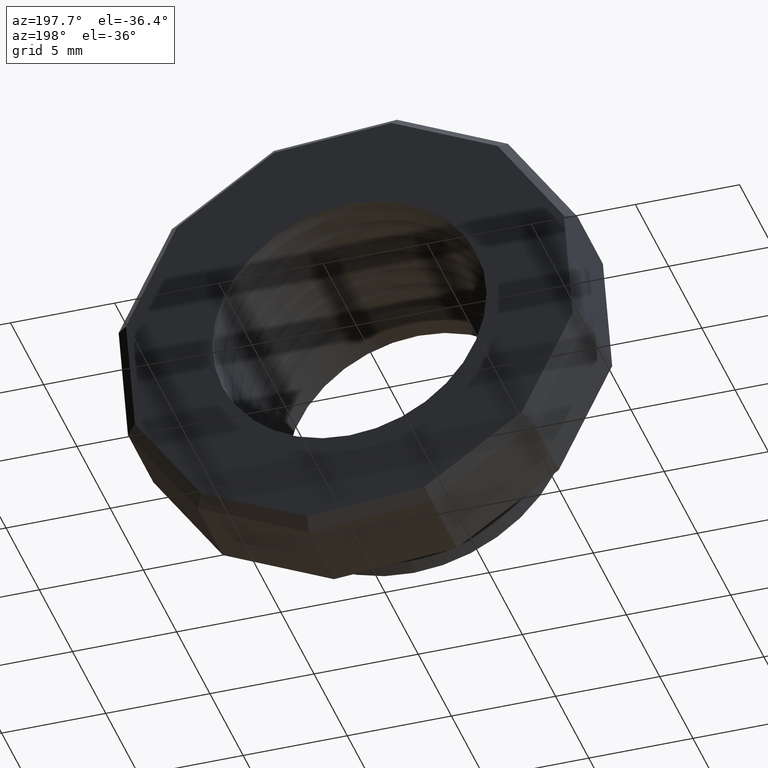
[diagram: clean part render]
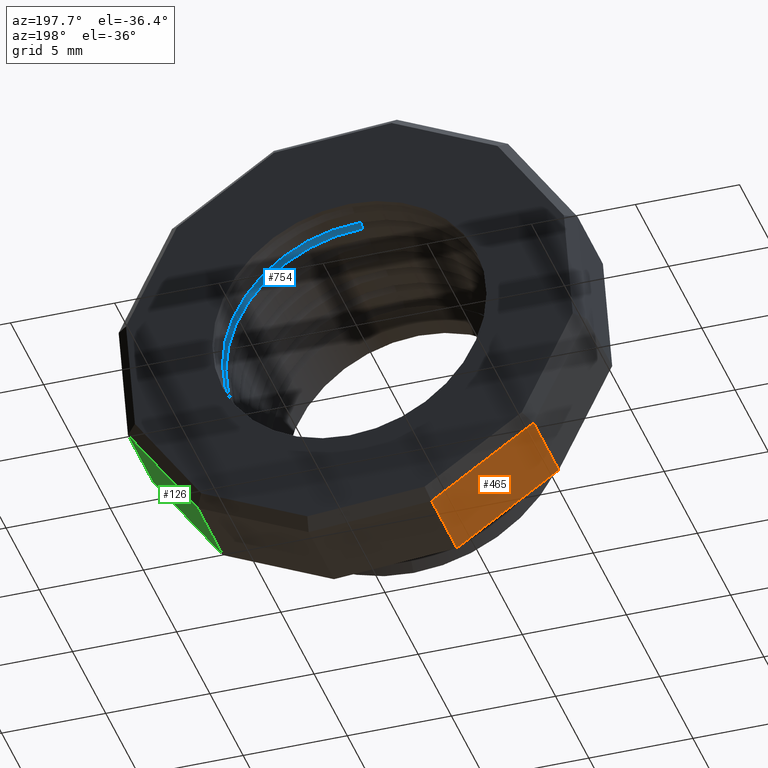
[diagram: same view with three faces highlighted in distinct colors, each labeled with its STEP entity id]
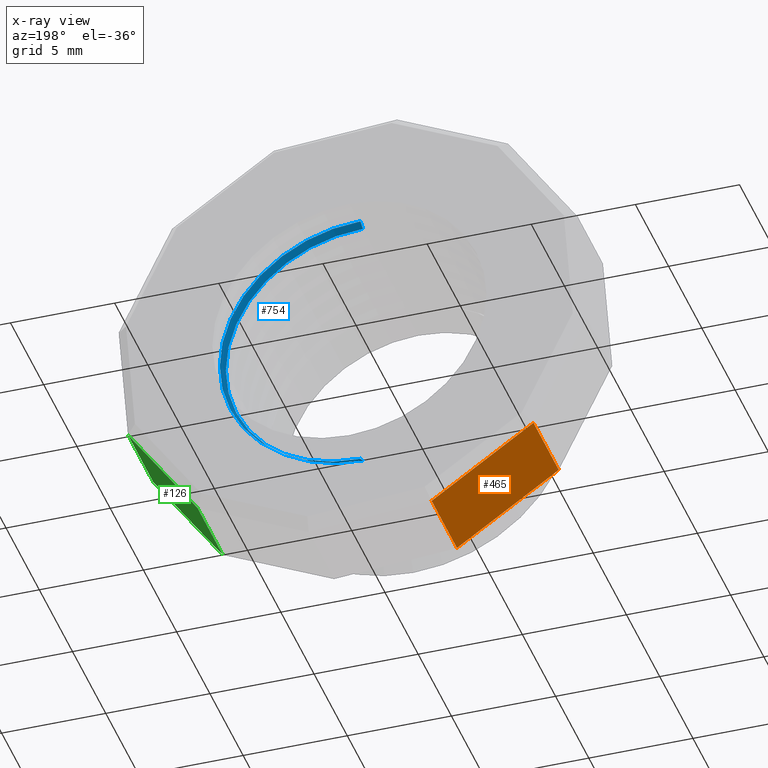
[diagram: x-ray of the same camera — body ghosted, the three highlighted faces saturated]
A machine part, auxiliary view with three faces highlighted in distinct colors.
The next image is the same camera in x-ray (body ghosted, the three faces saturated) — at least one of them is partly hidden behind the body in this view.
Their STEP definitions:

[orange] entity #465 — the highlighted planar face has unit normal (-0.5639, 0, -0.8258).
#22 = EDGE_CURVE ( 'NONE', #23, #347, #912, .T. ) ;
#23 = VERTEX_POINT ( 'NONE', #908 ) ;
#347 = VERTEX_POINT ( 'NONE', #1463 ) ;
#465 = ADVANCED_FACE ( 'NONE', ( #1689 ), #1688, .T. ) ;
#908 = CARTESIAN_POINT ( 'NONE',  ( -0.3415295484153665900, 0.2375548905829479600, -0.2934751395931106100 ) ) ;
#909 = DIRECTION ( 'NONE',  ( 0.8258262676036763900, 0.0000000000000000000, -0.5639246188417216300 ) ) ;
#910 = VECTOR ( 'NONE', #909, 39.37007874015748100 ) ;
#911 = CARTESIAN_POINT ( 'NONE',  ( -0.3415295484153665900, 0.2375548905829479600, -0.2934751395931106100 ) ) ;
#912 = LINE ( 'NONE', #911, #910 ) ;
#1463 = CARTESIAN_POINT ( 'NONE',  ( -0.1490356952741792000, 0.2375548905829479600, -0.4249217004745015100 ) ) ;
#1684 = DIRECTION ( 'NONE',  ( -0.8258262676036763900, 0.0000000000000000000, 0.5639246188417215100 ) ) ;
#1685 = DIRECTION ( 'NONE',  ( -0.5639246188417216300, 0.0000000000000000000, -0.8258262676036765000 ) ) ;
#1686 = AXIS2_PLACEMENT_3D ( 'NONE', #1687, #1685, #1684 ) ;
#1687 = CARTESIAN_POINT ( 'NONE',  ( -0.3415295484153665900, 0.4075548905829479700, -0.2934751395931106100 ) ) ;
#1688 = PLANE ( 'NONE',  #1686 ) ;
#1689 = FACE_OUTER_BOUND ( 'NONE', #2495, .T. ) ;
#2340 = DIRECTION ( 'NONE',  ( -0.0000000000000000000, -1.000000000000000000, -0.0000000000000000000 ) ) ;
#2341 = VECTOR ( 'NONE', #2340, 39.37007874015748100 ) ;
#2342 = CARTESIAN_POINT ( 'NONE',  ( -0.1490356952741792000, 0.4075548905829479700, -0.4249217004745015100 ) ) ;
#2343 = LINE ( 'NONE', #2342, #2341 ) ;
#2350 = CARTESIAN_POINT ( 'NONE',  ( -0.1490356952741792000, 0.3875548905829478400, -0.4249217004745015100 ) ) ;
#2367 = CARTESIAN_POINT ( 'NONE',  ( -0.3415295484153665900, 0.3875548905829478400, -0.2934751395931106100 ) ) ;
#2368 = DIRECTION ( 'NONE',  ( -0.0000000000000000000, -1.000000000000000000, -0.0000000000000000000 ) ) ;
#2369 = VECTOR ( 'NONE', #2368, 39.37007874015748100 ) ;
#2370 = CARTESIAN_POINT ( 'NONE',  ( -0.3415295484153665900, 0.4075548905829479700, -0.2934751395931106100 ) ) ;
#2371 = LINE ( 'NONE', #2370, #2369 ) ;
#2372 = DIRECTION ( 'NONE',  ( 0.8258262676036763900, 0.0000000000000000000, -0.5639246188417215100 ) ) ;
#2373 = VECTOR ( 'NONE', #2372, 39.37007874015748900 ) ;
#2374 = CARTESIAN_POINT ( 'NONE',  ( -0.3415295484153665900, 0.3875548905829478400, -0.2934751395931106100 ) ) ;
#2375 = LINE ( 'NONE', #2374, #2373 ) ;
#2474 = VERTEX_POINT ( 'NONE', #2350 ) ;
#2477 = EDGE_CURVE ( 'NONE', #2474, #347, #2343, .T. ) ;
#2480 = ORIENTED_EDGE ( 'NONE', *, *, #2477, .T. ) ;
#2485 = ORIENTED_EDGE ( 'NONE', *, *, #22, .F. ) ;
#2491 = EDGE_CURVE ( 'NONE', #2494, #2474, #2375, .T. ) ;
#2492 = EDGE_CURVE ( 'NONE', #2494, #23, #2371, .T. ) ;
#2493 = ORIENTED_EDGE ( 'NONE', *, *, #2491, .T. ) ;
#2494 = VERTEX_POINT ( 'NONE', #2367 ) ;
#2495 = EDGE_LOOP ( 'NONE', ( #2496, #2493, #2480, #2485 ) ) ;
#2496 = ORIENTED_EDGE ( 'NONE', *, *, #2492, .F. ) ;

[blue] entity #754 — the highlighted conical surface has half-angle 24.817 deg.
#143 = VERTEX_POINT ( 'NONE', #1085 ) ;
#150 = VERTEX_POINT ( 'NONE', #1078 ) ;
#151 = EDGE_CURVE ( 'NONE', #183, #176, #1073, .T. ) ;
#156 = EDGE_CURVE ( 'NONE', #143, #150, #1120, .T. ) ;
#176 = VERTEX_POINT ( 'NONE', #1151 ) ;
#183 = VERTEX_POINT ( 'NONE', #1142 ) ;
#438 = EDGE_CURVE ( 'NONE', #143, #183, #1665, .T. ) ;
#753 = EDGE_CURVE ( 'NONE', #176, #150, #2192, .T. ) ;
#754 = ADVANCED_FACE ( 'NONE', ( #2182 ), #2181, .F. ) ;
#755 = EDGE_LOOP ( 'NONE', ( #756, #757, #758, #759 ) ) ;
#756 = ORIENTED_EDGE ( 'NONE', *, *, #156, .F. ) ;
#757 = ORIENTED_EDGE ( 'NONE', *, *, #438, .T. ) ;
#758 = ORIENTED_EDGE ( 'NONE', *, *, #151, .T. ) ;
#759 = ORIENTED_EDGE ( 'NONE', *, *, #753, .T. ) ;
#1072 = CARTESIAN_POINT ( 'NONE',  ( 0.0000000000000000000, 0.3424728678899428000, 0.2657639150589583600 ) ) ;
#1073 = LINE ( 'NONE', #1072, #1132 ) ;
#1078 = CARTESIAN_POINT ( 'NONE',  ( 0.0000000000000000000, 0.3424728678899428000, -0.2657639150589583600 ) ) ;
#1085 = CARTESIAN_POINT ( 'NONE',  ( 0.0000000000000000000, 0.3278198431448201000, -0.2589880461203001900 ) ) ;
#1117 = DIRECTION ( 'NONE',  ( 5.140070007218194200E-017, 0.9076542974942150000, -0.4197185679003049300 ) ) ;
#1118 = VECTOR ( 'NONE', #1117, 39.37007874015748900 ) ;
#1119 = CARTESIAN_POINT ( 'NONE',  ( 3.254669279058223700E-017, 0.3424728678899428000, -0.2657639150589583600 ) ) ;
#1120 = LINE ( 'NONE', #1119, #1118 ) ;
#1131 = DIRECTION ( 'NONE',  ( 0.0000000000000000000, 0.9076542974942150000, 0.4197185679003049300 ) ) ;
#1132 = VECTOR ( 'NONE', #1131, 39.37007874015748900 ) ;
#1142 = CARTESIAN_POINT ( 'NONE',  ( 3.171688816986526800E-017, 0.3278198431448201000, 0.2589880461203001900 ) ) ;
#1151 = CARTESIAN_POINT ( 'NONE',  ( 3.254669279058223700E-017, 0.3424728678899428000, 0.2657639150589583600 ) ) ;
#1657 = DIRECTION ( 'NONE',  ( 0.0000000000000000000, 0.0000000000000000000, 1.000000000000000000 ) ) ;
#1658 = DIRECTION ( 'NONE',  ( 0.0000000000000000000, -1.000000000000000000, 0.0000000000000000000 ) ) ;
#1659 = CARTESIAN_POINT ( 'NONE',  ( 0.0000000000000000000, 0.3278198431448201000, 0.0000000000000000000 ) ) ;
#1660 = AXIS2_PLACEMENT_3D ( 'NONE', #1659, #1658, #1657 ) ;
#1665 = CIRCLE ( 'NONE', #1660, 0.2589880461203001900 ) ;
#2176 = DIRECTION ( 'NONE',  ( 0.0000000000000000000, 0.0000000000000000000, 1.000000000000000000 ) ) ;
#2177 = DIRECTION ( 'NONE',  ( -0.0000000000000000000, 1.000000000000000000, -0.0000000000000000000 ) ) ;
#2178 = CARTESIAN_POINT ( 'NONE',  ( 0.0000000000000000000, 0.3424728678899428000, 0.0000000000000000000 ) ) ;
#2179 = AXIS2_PLACEMENT_3D ( 'NONE', #2178, #2177, #2176 ) ;
#2181 = CONICAL_SURFACE ( 'NONE', #2179, 0.2657639150589583600, 0.4331352325356226900 ) ;
#2182 = FACE_OUTER_BOUND ( 'NONE', #755, .T. ) ;
#2183 = DIRECTION ( 'NONE',  ( 0.0000000000000000000, 0.0000000000000000000, 1.000000000000000000 ) ) ;
#2184 = DIRECTION ( 'NONE',  ( -0.0000000000000000000, 1.000000000000000000, -0.0000000000000000000 ) ) ;
#2185 = CARTESIAN_POINT ( 'NONE',  ( 0.0000000000000000000, 0.3424728678899428000, 0.0000000000000000000 ) ) ;
#2186 = AXIS2_PLACEMENT_3D ( 'NONE', #2185, #2184, #2183 ) ;
#2192 = CIRCLE ( 'NONE', #2186, 0.2657639150589583600 ) ;

[green] entity #126 — the highlighted planar face has unit normal (0.8258, 0, -0.5639).
#54 = EDGE_CURVE ( 'NONE', #55, #58, #919, .T. ) ;
#55 = VERTEX_POINT ( 'NONE', #915 ) ;
#58 = VERTEX_POINT ( 'NONE', #971 ) ;
#124 = EDGE_CURVE ( 'NONE', #125, #58, #1059, .T. ) ;
#125 = VERTEX_POINT ( 'NONE', #1055 ) ;
#126 = ADVANCED_FACE ( 'NONE', ( #1054 ), #1053, .T. ) ;
#915 = CARTESIAN_POINT ( 'NONE',  ( 0.2934751395931106700, 0.2375548905829479600, -0.3415295484153663700 ) ) ;
#916 = DIRECTION ( 'NONE',  ( 0.5639246188417219600, 0.0000000000000000000, 0.8258262676036761700 ) ) ;
#917 = VECTOR ( 'NONE', #916, 39.37007874015748100 ) ;
#918 = CARTESIAN_POINT ( 'NONE',  ( 0.2934751395931106700, 0.2375548905829479600, -0.3415295484153663700 ) ) ;
#919 = LINE ( 'NONE', #918, #917 ) ;
#971 = CARTESIAN_POINT ( 'NONE',  ( 0.4249217004745015100, 0.2375548905829479600, -0.1490356952741792900 ) ) ;
#1049 = DIRECTION ( 'NONE',  ( -0.5639246188417219600, 0.0000000000000000000, -0.8258262676036761700 ) ) ;
#1050 = DIRECTION ( 'NONE',  ( 0.8258262676036761700, 0.0000000000000000000, -0.5639246188417219600 ) ) ;
#1051 = AXIS2_PLACEMENT_3D ( 'NONE', #1052, #1050, #1049 ) ;
#1052 = CARTESIAN_POINT ( 'NONE',  ( 0.2934751395931106700, 0.4075548905829479700, -0.3415295484153663700 ) ) ;
#1053 = PLANE ( 'NONE',  #1051 ) ;
#1054 = FACE_OUTER_BOUND ( 'NONE', #2467, .T. ) ;
#1055 = CARTESIAN_POINT ( 'NONE',  ( 0.4249217004745015100, 0.3875548905829478400, -0.1490356952741792900 ) ) ;
#1056 = DIRECTION ( 'NONE',  ( -0.0000000000000000000, -1.000000000000000000, -0.0000000000000000000 ) ) ;
#1057 = VECTOR ( 'NONE', #1056, 39.37007874015748100 ) ;
#1058 = CARTESIAN_POINT ( 'NONE',  ( 0.4249217004745015100, 0.4075548905829479700, -0.1490356952741792900 ) ) ;
#1059 = LINE ( 'NONE', #1058, #1057 ) ;
#2297 = DIRECTION ( 'NONE',  ( 0.5639246188417219600, 0.0000000000000000000, 0.8258262676036761700 ) ) ;
#2298 = VECTOR ( 'NONE', #2297, 39.37007874015748100 ) ;
#2299 = CARTESIAN_POINT ( 'NONE',  ( 0.2934751395931106700, 0.3875548905829478400, -0.3415295484153663700 ) ) ;
#2300 = LINE ( 'NONE', #2299, #2298 ) ;
#2301 = DIRECTION ( 'NONE',  ( -0.0000000000000000000, -1.000000000000000000, -0.0000000000000000000 ) ) ;
#2302 = VECTOR ( 'NONE', #2301, 39.37007874015748100 ) ;
#2303 = CARTESIAN_POINT ( 'NONE',  ( 0.2934751395931106700, 0.4075548905829479700, -0.3415295484153663700 ) ) ;
#2304 = LINE ( 'NONE', #2303, #2302 ) ;
#2305 = CARTESIAN_POINT ( 'NONE',  ( 0.2934751395931106700, 0.3875548905829478400, -0.3415295484153663700 ) ) ;
#2460 = VERTEX_POINT ( 'NONE', #2305 ) ;
#2461 = ORIENTED_EDGE ( 'NONE', *, *, #2463, .T. ) ;
#2462 = EDGE_CURVE ( 'NONE', #2460, #55, #2304, .T. ) ;
#2463 = EDGE_CURVE ( 'NONE', #2460, #125, #2300, .T. ) ;
#2464 = ORIENTED_EDGE ( 'NONE', *, *, #124, .T. ) ;
#2465 = ORIENTED_EDGE ( 'NONE', *, *, #54, .F. ) ;
#2466 = ORIENTED_EDGE ( 'NONE', *, *, #2462, .F. ) ;
#2467 = EDGE_LOOP ( 'NONE', ( #2466, #2461, #2464, #2465 ) ) ;